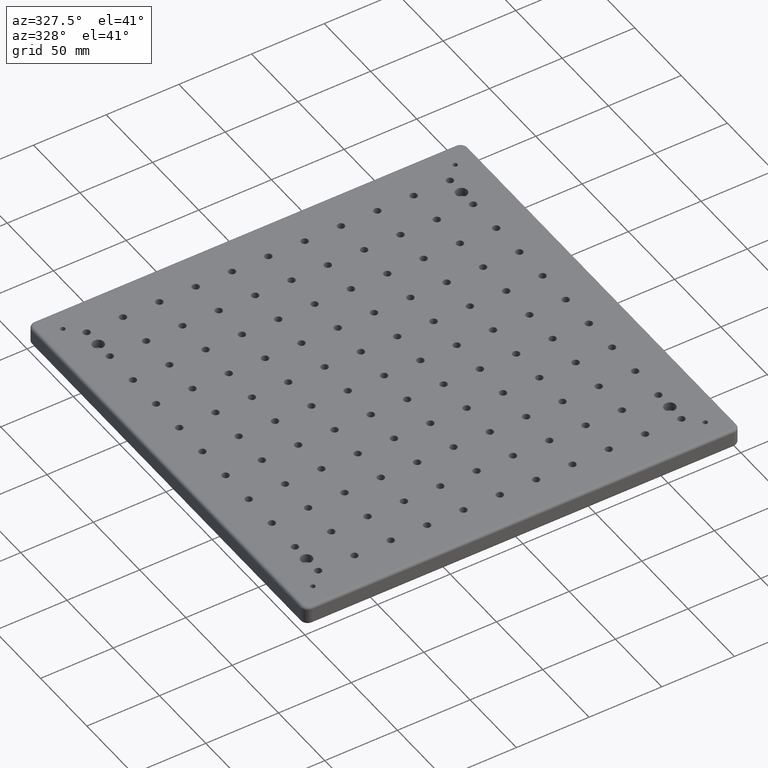
[diagram: clean part render]
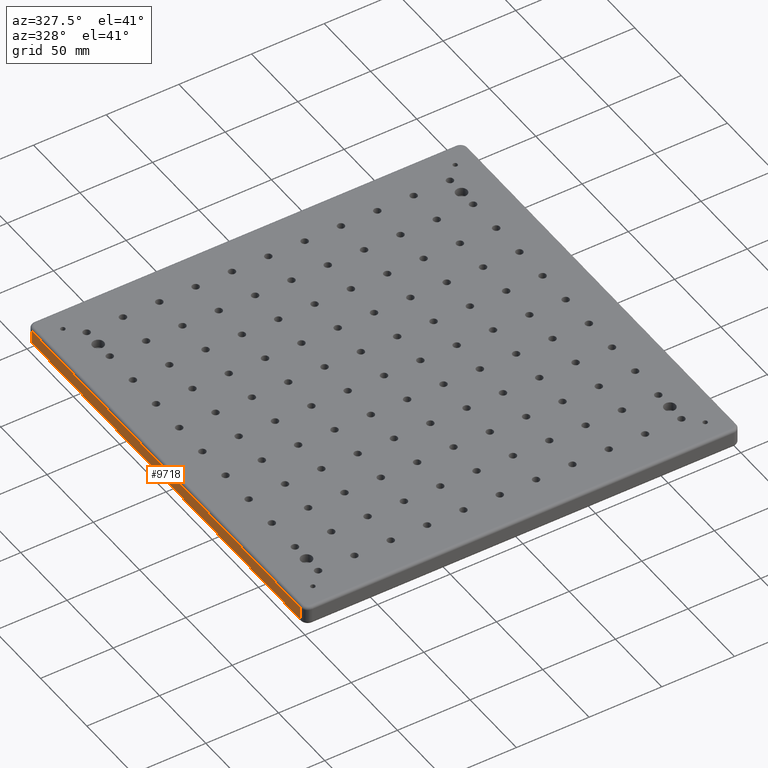
[diagram: same view with one face highlighted and labeled with its STEP entity id]
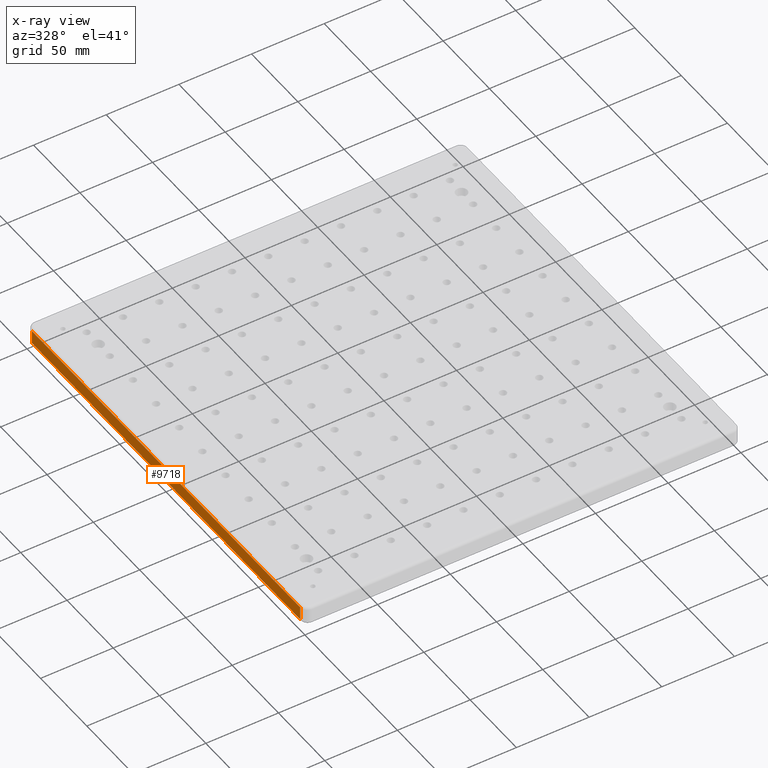
[diagram: x-ray of the same camera — body ghosted, the highlighted face saturated]
A machine part, auxiliary view. The second image highlights one B-rep face of the part: STEP entity #9718.
The next image is the same camera in x-ray: the body ghosted, the highlighted face saturated — about 0% of this face is hidden behind the body in this view.
In plain terms, the highlighted planar face has unit normal (-1, 0, 0).
Its self-contained STEP definition (entity closure, byte-faithful):
#179 = EDGE_LOOP ( 'NONE', ( #4494, #3815, #8277, #8481 ) ) ;
#480 = CARTESIAN_POINT ( 'NONE',  ( 0.0000000000000000000, 295.0000000000000000, -2.000000000000000000 ) ) ;
#1210 = DIRECTION ( 'NONE',  ( -0.0000000000000000000, 1.000000000000000000, -0.0000000000000000000 ) ) ;
#1274 = EDGE_CURVE ( 'NONE', #1877, #3184, #6621, .T. ) ;
#1333 = CARTESIAN_POINT ( 'NONE',  ( 0.0000000000000000000, 295.0000000000000000, -13.00000000000000000 ) ) ;
#1625 = CARTESIAN_POINT ( 'NONE',  ( 0.0000000000000000000, 0.0000000000000000000, -13.00000000000000000 ) ) ;
#1764 = EDGE_CURVE ( 'NONE', #3184, #4155, #3275, .T. ) ;
#1877 = VERTEX_POINT ( 'NONE', #5437 ) ;
#2254 = CARTESIAN_POINT ( 'NONE',  ( 0.0000000000000000000, 295.0000000000000000, -2.000000000000000000 ) ) ;
#2278 = DIRECTION ( 'NONE',  ( -0.0000000000000000000, -0.0000000000000000000, -1.000000000000000000 ) ) ;
#2593 = PLANE ( 'NONE',  #9865 ) ;
#3184 = VERTEX_POINT ( 'NONE', #8042 ) ;
#3275 = LINE ( 'NONE', #4366, #9833 ) ;
#3279 = DIRECTION ( 'NONE',  ( 0.0000000000000000000, 0.0000000000000000000, 1.000000000000000000 ) ) ;
#3673 = CARTESIAN_POINT ( 'NONE',  ( 0.0000000000000000000, 4.999999999999998200, -2.000000000000000000 ) ) ;
#3800 = LINE ( 'NONE', #480, #7518 ) ;
#3815 = ORIENTED_EDGE ( 'NONE', *, *, #1274, .T. ) ;
#4155 = VERTEX_POINT ( 'NONE', #3673 ) ;
#4366 = CARTESIAN_POINT ( 'NONE',  ( 0.0000000000000000000, 4.999999999999998200, -13.00000000000000000 ) ) ;
#4455 = VECTOR ( 'NONE', #8137, 1000.000000000000000 ) ;
#4494 = ORIENTED_EDGE ( 'NONE', *, *, #5116, .T. ) ;
#4959 = VERTEX_POINT ( 'NONE', #2254 ) ;
#5116 = EDGE_CURVE ( 'NONE', #4959, #1877, #10579, .T. ) ;
#5364 = FACE_OUTER_BOUND ( 'NONE', #179, .T. ) ;
#5437 = CARTESIAN_POINT ( 'NONE',  ( 0.0000000000000000000, 295.0000000000000000, -11.00000000000000000 ) ) ;
#6621 = LINE ( 'NONE', #7302, #4455 ) ;
#7302 = CARTESIAN_POINT ( 'NONE',  ( 0.0000000000000000000, 0.0000000000000000000, -11.00000000000000000 ) ) ;
#7518 = VECTOR ( 'NONE', #1210, 1000.000000000000000 ) ;
#8042 = CARTESIAN_POINT ( 'NONE',  ( 0.0000000000000000000, 4.999999999999998200, -11.00000000000000000 ) ) ;
#8137 = DIRECTION ( 'NONE',  ( 0.0000000000000000000, -1.000000000000000000, 0.0000000000000000000 ) ) ;
#8218 = DIRECTION ( 'NONE',  ( -1.000000000000000000, 0.0000000000000000000, 0.0000000000000000000 ) ) ;
#8277 = ORIENTED_EDGE ( 'NONE', *, *, #1764, .T. ) ;
#8307 = EDGE_CURVE ( 'NONE', #4155, #4959, #3800, .T. ) ;
#8411 = VECTOR ( 'NONE', #2278, 1000.000000000000000 ) ;
#8461 = DIRECTION ( 'NONE',  ( 0.0000000000000000000, 0.0000000000000000000, 1.000000000000000000 ) ) ;
#8481 = ORIENTED_EDGE ( 'NONE', *, *, #8307, .T. ) ;
#9718 = ADVANCED_FACE ( 'NONE', ( #5364 ), #2593, .T. ) ;
#9833 = VECTOR ( 'NONE', #8461, 1000.000000000000000 ) ;
#9865 = AXIS2_PLACEMENT_3D ( 'NONE', #1625, #8218, #3279 ) ;
#10579 = LINE ( 'NONE', #1333, #8411 ) ;